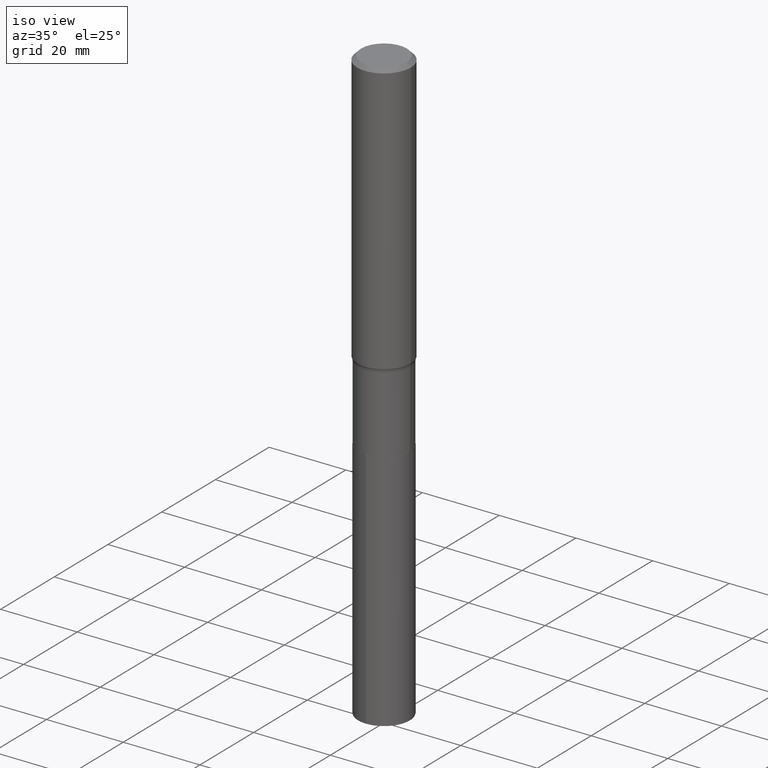
[diagram: clean part render]
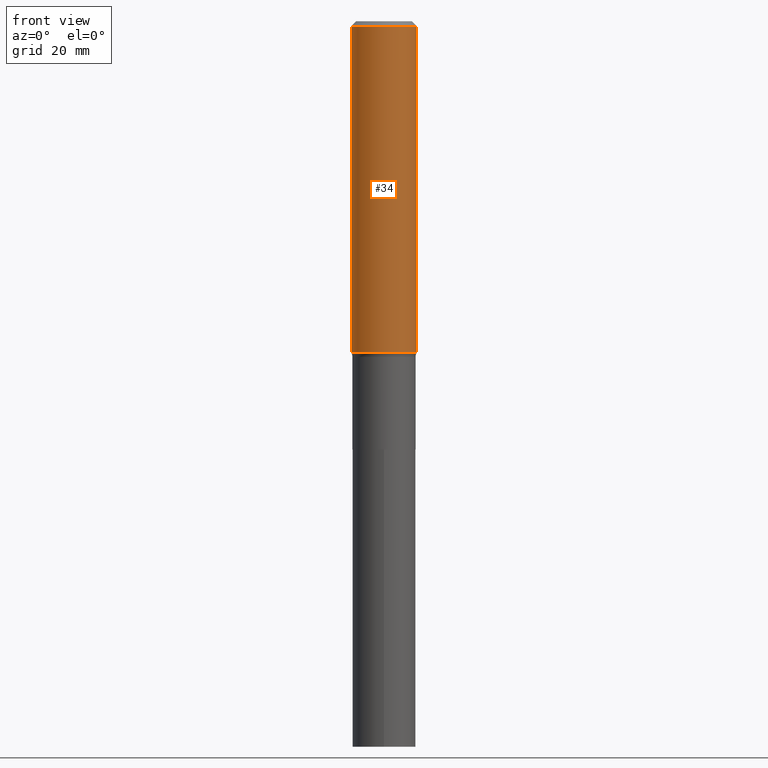
[diagram: tour spotlight — one face highlighted and labeled with its STEP entity id]
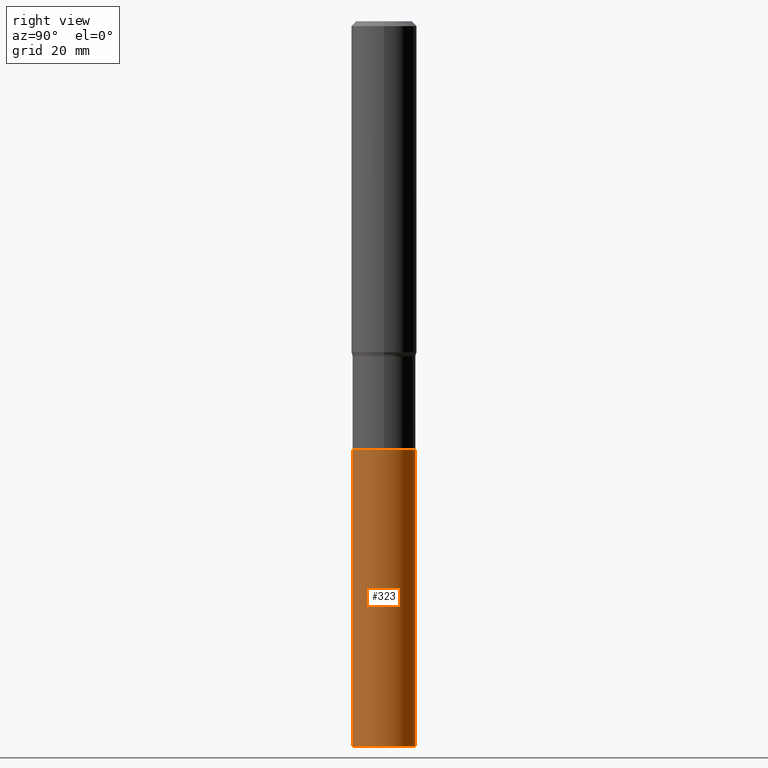
[diagram: tour spotlight — one face highlighted and labeled with its STEP entity id]
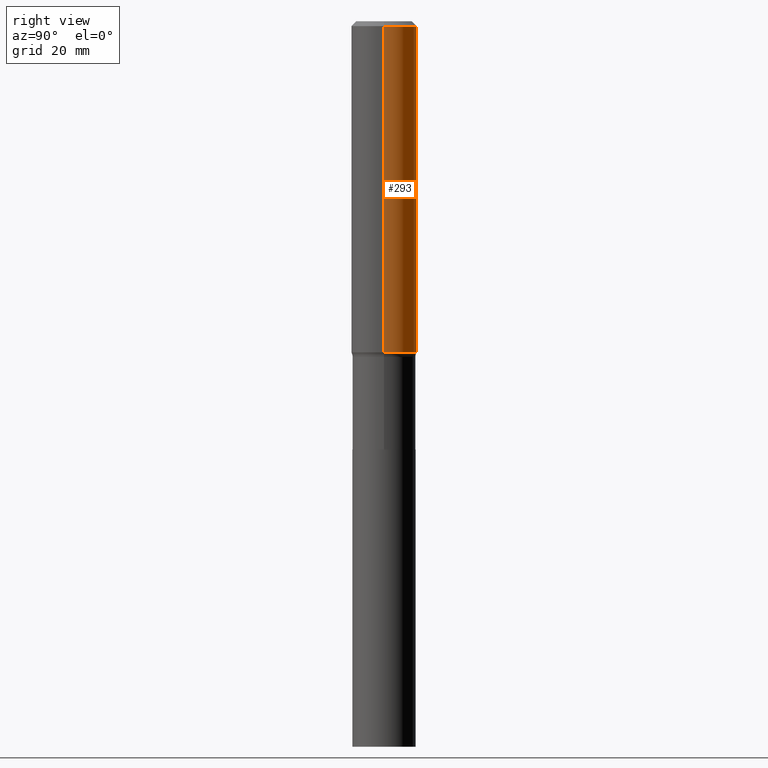
[diagram: tour spotlight — one face highlighted and labeled with its STEP entity id]
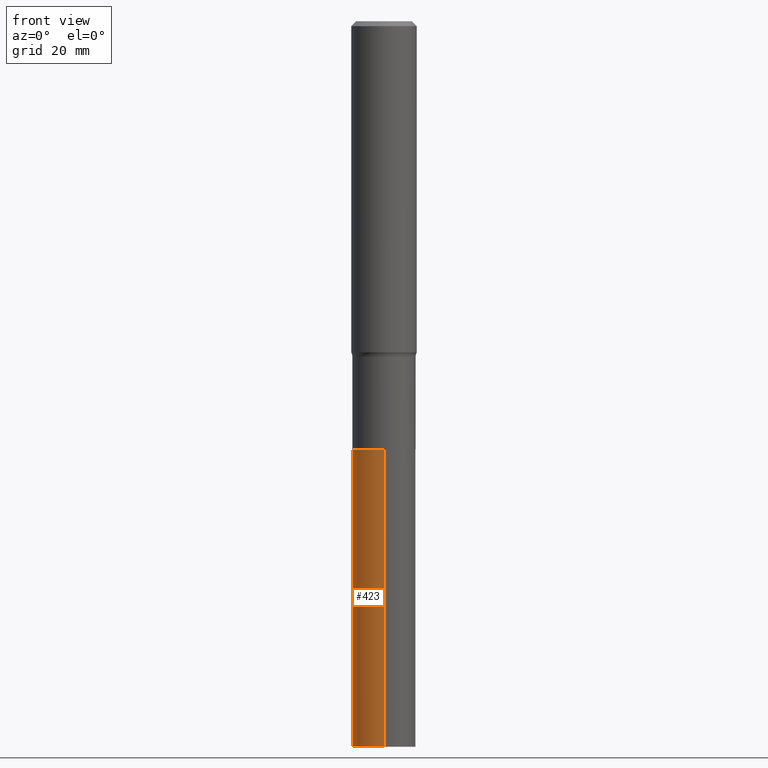
[diagram: tour spotlight — one face highlighted and labeled with its STEP entity id]
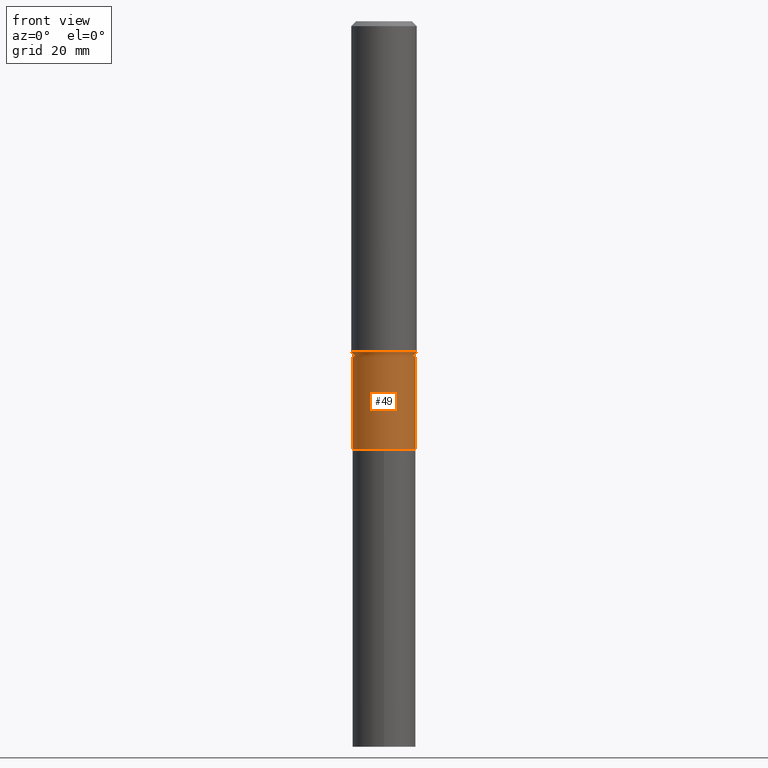
[diagram: tour spotlight — one face highlighted and labeled with its STEP entity id]
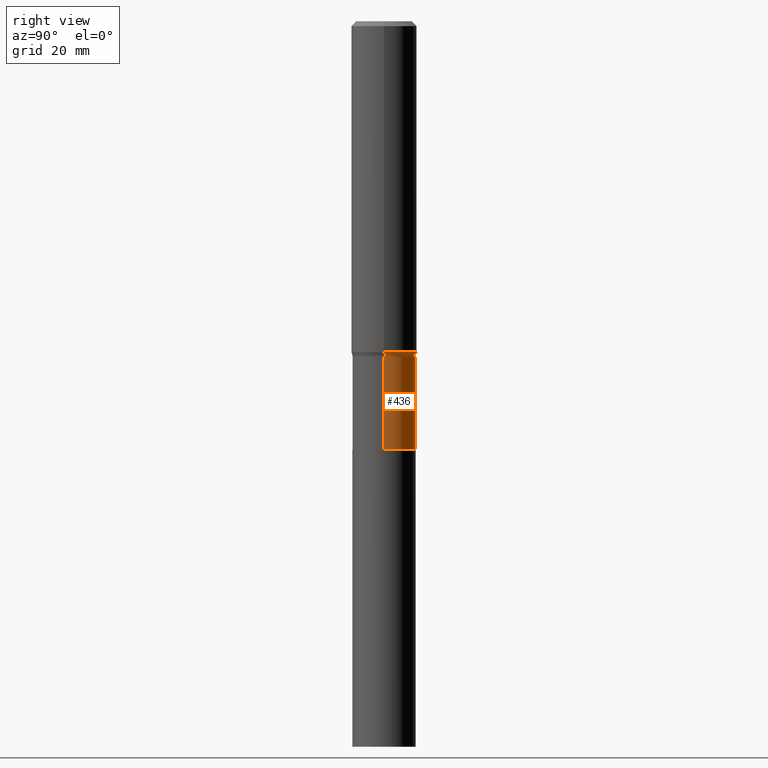
[diagram: tour spotlight — one face highlighted and labeled with its STEP entity id]
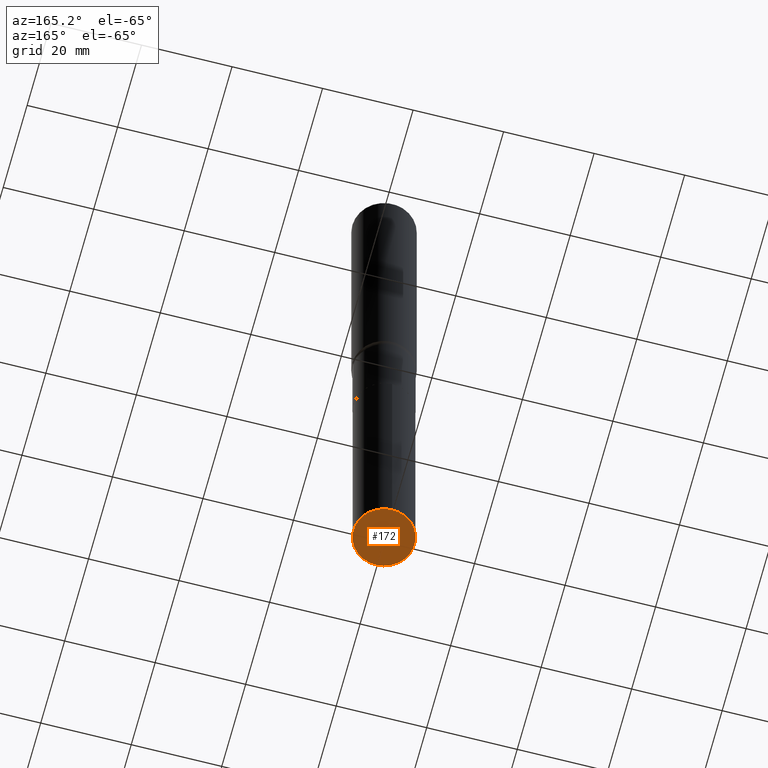
[diagram: tour spotlight — one face highlighted and labeled with its STEP entity id]
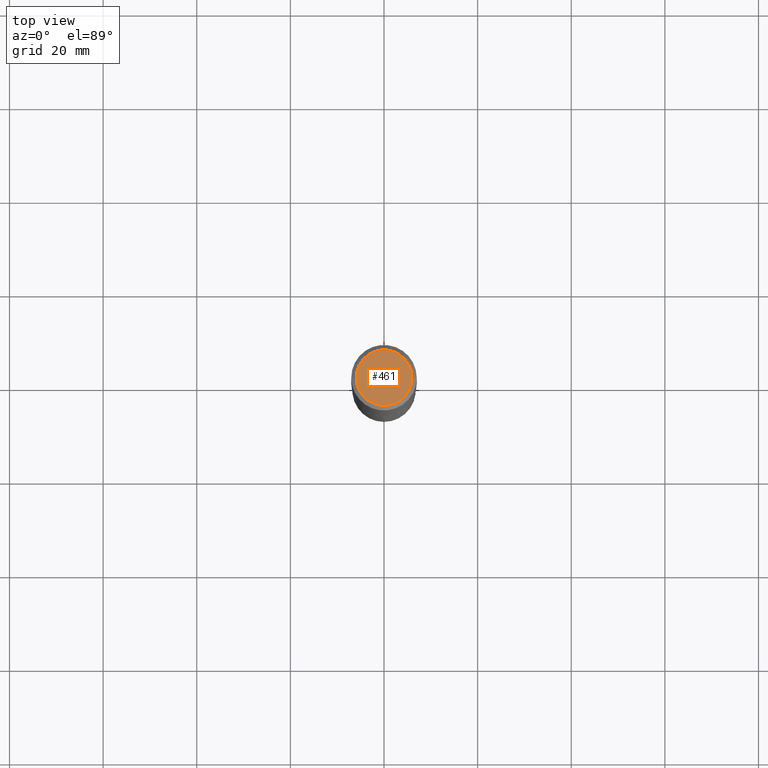
[diagram: tour spotlight — one face highlighted and labeled with its STEP entity id]
A machine part: a face-by-face anatomy tour. The part has 16 B-rep faces; the first image is the clean iso view, then the 8 largest visible faces are spotlighted one at a time (largest first), each with its STEP entity span.

Face 1 — front view, entity #34. In plain terms, the highlighted cylindrical surface (edge-blend (fillet) strip) has radius 7.0002 mm, axis along (-0, 0, 1).
Definition (entity closure, byte-faithful):
#22 = CIRCLE ( 'NONE', #47, 0.2756000000000004002 ) ;
#23 = CARTESIAN_POINT ( 'NONE',  ( -0.2756000000000001782, 1.958255779754837378E-15, -1.355658510874252848E-29 ) ) ;
#32 = CARTESIAN_POINT ( 'NONE',  ( -0.2756000000000000116, -2.976224286966953364E-15, -0.04134000000000025848 ) ) ;
#34 = ADVANCED_FACE ( 'NONE', ( #296 ), #229, .T. ) ;
#47 = AXIS2_PLACEMENT_3D ( 'NONE', #266, #290, #136 ) ;
#84 = ORIENTED_EDGE ( 'NONE', *, *, #152, .T. ) ;
#97 = ORIENTED_EDGE ( 'NONE', *, *, #260, .T. ) ;
#107 = EDGE_LOOP ( 'NONE', ( #267, #97, #84, #406 ) ) ;
#112 = DIRECTION ( 'NONE',  ( 1.000000000000000000, -6.982962677686267499E-15, 0.000000000000000000 ) ) ;
#136 = DIRECTION ( 'NONE',  ( 1.000000000000000000, -6.982962677686270655E-15, 0.000000000000000000 ) ) ;
#152 = EDGE_CURVE ( 'NONE', #451, #355, #450, .T. ) ;
#201 = CIRCLE ( 'NONE', #371, 0.2756000000000000116 ) ;
#229 = CYLINDRICAL_SURFACE ( 'NONE', #330, 0.2756000000000001782 ) ;
#233 = VECTOR ( 'NONE', #244, 39.37007874015748143 ) ;
#244 = DIRECTION ( 'NONE',  ( -2.445468806185136877E-29, 3.491481338843145188E-15, 1.000000000000000000 ) ) ;
#249 = DIRECTION ( 'NONE',  ( -2.445468806185136877E-29, 3.491481338843145188E-15, 1.000000000000000000 ) ) ;
#260 = EDGE_CURVE ( 'NONE', #444, #451, #22, .T. ) ;
#266 = CARTESIAN_POINT ( 'NONE',  ( 6.811223708839815115E-29, -9.724622294895805890E-15, -2.785242523483721477 ) ) ;
#267 = ORIENTED_EDGE ( 'NONE', *, *, #303, .F. ) ;
#290 = DIRECTION ( 'NONE',  ( -2.445468806185136597E-29, 3.491481338843145583E-15, 1.000000000000000000 ) ) ;
#292 = CARTESIAN_POINT ( 'NONE',  ( 0.2756000000000004002, -1.164912680886614558E-14, -2.785242523483721477 ) ) ;
#296 = FACE_OUTER_BOUND ( 'NONE', #107, .T. ) ;
#303 = EDGE_CURVE ( 'NONE', #444, #393, #382, .T. ) ;
#308 = CARTESIAN_POINT ( 'NONE',  ( 0.2756000000000000116, -2.068842352518111732E-15, -0.04134000000000025848 ) ) ;
#330 = AXIS2_PLACEMENT_3D ( 'NONE', #466, #400, #366 ) ;
#350 = CARTESIAN_POINT ( 'NONE',  ( 0.2756000000000001782, -1.924504513970336532E-15, 1.343874319409360828E-29 ) ) ;
#355 = VERTEX_POINT ( 'NONE', #308 ) ;
#356 = VECTOR ( 'NONE', #249, 39.37007874015748143 ) ;
#366 = DIRECTION ( 'NONE',  ( 1.000000000000000000, -6.982962677686267499E-15, 4.876176775795935793E-29 ) ) ;
#371 = AXIS2_PLACEMENT_3D ( 'NONE', #431, #428, #112 ) ;
#382 = LINE ( 'NONE', #23, #356 ) ;
#389 = EDGE_CURVE ( 'NONE', #393, #355, #201, .T. ) ;
#393 = VERTEX_POINT ( 'NONE', #32 ) ;
#400 = DIRECTION ( 'NONE',  ( -2.445468806185136597E-29, 3.491481338843145583E-15, 1.000000000000000000 ) ) ;
#406 = ORIENTED_EDGE ( 'NONE', *, *, #389, .F. ) ;
#428 = DIRECTION ( 'NONE',  ( -2.445468806185136597E-29, 3.491481338843145583E-15, 1.000000000000000000 ) ) ;
#429 = CARTESIAN_POINT ( 'NONE',  ( -0.2756000000000004002, -7.766366515140966145E-15, -2.785242523483721477 ) ) ;
#431 = CARTESIAN_POINT ( 'NONE',  ( 1.010956804476941872E-30, -1.443378385477765316E-16, -0.04134000000000025848 ) ) ;
#444 = VERTEX_POINT ( 'NONE', #429 ) ;
#450 = LINE ( 'NONE', #350, #233 ) ;
#451 = VERTEX_POINT ( 'NONE', #292 ) ;
#466 = CARTESIAN_POINT ( 'NONE',  ( 0.000000000000000000, 0.000000000000000000, 0.000000000000000000 ) ) ;

Face 2 — right view, entity #323. In plain terms, the highlighted cylindrical surface (edge-blend (fillet) strip) has radius 6.75 mm, axis along (-0, 0, 1).
Definition (entity closure, byte-faithful):
#3 = DIRECTION ( 'NONE',  ( -2.445202752082162173E-29, 3.491862343461463945E-15, 1.000000000000000000 ) ) ;
#19 = CARTESIAN_POINT ( 'NONE',  ( 8.809556827401336523E-29, -1.257771237504854747E-14, -3.602399999999999824 ) ) ;
#51 = DIRECTION ( 'NONE',  ( -6.982962677686266711E-15, -1.000000000000000000, 4.111906669673397387E-15 ) ) ;
#55 = CARTESIAN_POINT ( 'NONE',  ( 1.888267320282615635E-15, 0.2657499999999874407, -3.602400000000000713 ) ) ;
#58 = CYLINDRICAL_SURFACE ( 'NONE', #361, 0.2657499999999999862 ) ;
#90 = VERTEX_POINT ( 'NONE', #392 ) ;
#99 = CARTESIAN_POINT ( 'NONE',  ( -1.855722331595036994E-15, -0.2657500000000125318, -3.602399999999998492 ) ) ;
#104 = DIRECTION ( 'NONE',  ( -2.445202752082161893E-29, 3.491862343461464340E-15, 1.000000000000000000 ) ) ;
#120 = EDGE_LOOP ( 'NONE', ( #213, #424, #287, #164 ) ) ;
#123 = VECTOR ( 'NONE', #104, 39.37007874015748143 ) ;
#132 = VERTEX_POINT ( 'NONE', #55 ) ;
#146 = DIRECTION ( 'NONE',  ( -2.445202752082162173E-29, 3.491862343461463945E-15, 1.000000000000000000 ) ) ;
#149 = DIRECTION ( 'NONE',  ( -6.982962677686266711E-15, -1.000000000000000000, 4.111906669673397387E-15 ) ) ;
#162 = CIRCLE ( 'NONE', #219, 0.2657499999999999862 ) ;
#164 = ORIENTED_EDGE ( 'NONE', *, *, #189, .F. ) ;
#189 = EDGE_CURVE ( 'NONE', #283, #263, #246, .T. ) ;
#212 = DIRECTION ( 'NONE',  ( -2.445202752082162173E-29, 3.491862343461463945E-15, 1.000000000000000000 ) ) ;
#213 = ORIENTED_EDGE ( 'NONE', *, *, #449, .T. ) ;
#219 = AXIS2_PLACEMENT_3D ( 'NONE', #291, #146, #149 ) ;
#235 = VECTOR ( 'NONE', #279, 39.37007874015748143 ) ;
#246 = LINE ( 'NONE', #318, #123 ) ;
#262 = CARTESIAN_POINT ( 'NONE',  ( 1.492256370760674490E-28, -2.130736823370221108E-14, -6.102400000000001157 ) ) ;
#263 = VERTEX_POINT ( 'NONE', #99 ) ;
#279 = DIRECTION ( 'NONE',  ( -2.445202752082161893E-29, 3.491862343461464340E-15, 1.000000000000000000 ) ) ;
#283 = VERTEX_POINT ( 'NONE', #407 ) ;
#287 = ORIENTED_EDGE ( 'NONE', *, *, #432, .F. ) ;
#291 = CARTESIAN_POINT ( 'NONE',  ( 8.809556827401336523E-29, -1.257771237504854747E-14, -3.602399999999999824 ) ) ;
#298 = CIRCLE ( 'NONE', #349, 0.2657499999999999862 ) ;
#315 = LINE ( 'NONE', #454, #235 ) ;
#318 = CARTESIAN_POINT ( 'NONE',  ( -1.855722331595036994E-15, -0.2657500000000125318, -3.602399999999998492 ) ) ;
#323 = ADVANCED_FACE ( 'NONE', ( #384 ), #58, .T. ) ;
#341 = EDGE_CURVE ( 'NONE', #90, #132, #315, .T. ) ;
#349 = AXIS2_PLACEMENT_3D ( 'NONE', #262, #3, #367 ) ;
#361 = AXIS2_PLACEMENT_3D ( 'NONE', #19, #212, #51 ) ;
#367 = DIRECTION ( 'NONE',  ( -6.982962677686266711E-15, -1.000000000000000000, 4.111906669673397387E-15 ) ) ;
#384 = FACE_OUTER_BOUND ( 'NONE', #120, .T. ) ;
#392 = CARTESIAN_POINT ( 'NONE',  ( 1.888267320282584475E-15, 0.2657499999999786700, -6.102400000000002045 ) ) ;
#407 = CARTESIAN_POINT ( 'NONE',  ( -1.855722331594975858E-15, -0.2657500000000213025, -6.102400000000000269 ) ) ;
#424 = ORIENTED_EDGE ( 'NONE', *, *, #341, .T. ) ;
#432 = EDGE_CURVE ( 'NONE', #263, #132, #162, .T. ) ;
#449 = EDGE_CURVE ( 'NONE', #283, #90, #298, .T. ) ;
#454 = CARTESIAN_POINT ( 'NONE',  ( 1.888267320282554104E-15, 0.2657499999999874407, -3.602400000000000713 ) ) ;

Face 3 — right view, entity #293. In plain terms, the highlighted cylindrical surface (edge-blend (fillet) strip) has radius 7.0002 mm, axis along (-0, 0, 1).
Definition (entity closure, byte-faithful):
#23 = CARTESIAN_POINT ( 'NONE',  ( -0.2756000000000001782, 1.958255779754837378E-15, -1.355658510874252848E-29 ) ) ;
#32 = CARTESIAN_POINT ( 'NONE',  ( -0.2756000000000000116, -2.976224286966953364E-15, -0.04134000000000025848 ) ) ;
#37 = ORIENTED_EDGE ( 'NONE', *, *, #152, .F. ) ;
#39 = AXIS2_PLACEMENT_3D ( 'NONE', #204, #352, #345 ) ;
#45 = FACE_OUTER_BOUND ( 'NONE', #387, .T. ) ;
#92 = DIRECTION ( 'NONE',  ( -2.445468806185136597E-29, 3.491481338843145583E-15, 1.000000000000000000 ) ) ;
#96 = CIRCLE ( 'NONE', #39, 0.2756000000000000116 ) ;
#152 = EDGE_CURVE ( 'NONE', #451, #355, #450, .T. ) ;
#163 = DIRECTION ( 'NONE',  ( -2.445468806185136597E-29, 3.491481338843145583E-15, 1.000000000000000000 ) ) ;
#174 = DIRECTION ( 'NONE',  ( 1.000000000000000000, -6.982962677686267499E-15, 4.876176775795935793E-29 ) ) ;
#204 = CARTESIAN_POINT ( 'NONE',  ( 1.010956804476941872E-30, -1.443378385477765316E-16, -0.04134000000000025848 ) ) ;
#214 = ORIENTED_EDGE ( 'NONE', *, *, #338, .F. ) ;
#233 = VECTOR ( 'NONE', #244, 39.37007874015748143 ) ;
#241 = DIRECTION ( 'NONE',  ( 1.000000000000000000, -6.982962677686270655E-15, 0.000000000000000000 ) ) ;
#243 = CARTESIAN_POINT ( 'NONE',  ( 0.000000000000000000, 0.000000000000000000, 0.000000000000000000 ) ) ;
#244 = DIRECTION ( 'NONE',  ( -2.445468806185136877E-29, 3.491481338843145188E-15, 1.000000000000000000 ) ) ;
#247 = ORIENTED_EDGE ( 'NONE', *, *, #303, .T. ) ;
#249 = DIRECTION ( 'NONE',  ( -2.445468806185136877E-29, 3.491481338843145188E-15, 1.000000000000000000 ) ) ;
#251 = AXIS2_PLACEMENT_3D ( 'NONE', #243, #92, #174 ) ;
#292 = CARTESIAN_POINT ( 'NONE',  ( 0.2756000000000004002, -1.164912680886614558E-14, -2.785242523483721477 ) ) ;
#293 = ADVANCED_FACE ( 'NONE', ( #45 ), #410, .T. ) ;
#303 = EDGE_CURVE ( 'NONE', #444, #393, #382, .T. ) ;
#308 = CARTESIAN_POINT ( 'NONE',  ( 0.2756000000000000116, -2.068842352518111732E-15, -0.04134000000000025848 ) ) ;
#338 = EDGE_CURVE ( 'NONE', #355, #393, #96, .T. ) ;
#342 = CARTESIAN_POINT ( 'NONE',  ( 6.811223708839815115E-29, -9.724622294895805890E-15, -2.785242523483721477 ) ) ;
#345 = DIRECTION ( 'NONE',  ( 1.000000000000000000, -6.982962677686267499E-15, 0.000000000000000000 ) ) ;
#350 = CARTESIAN_POINT ( 'NONE',  ( 0.2756000000000001782, -1.924504513970336532E-15, 1.343874319409360828E-29 ) ) ;
#352 = DIRECTION ( 'NONE',  ( -2.445468806185136597E-29, 3.491481338843145583E-15, 1.000000000000000000 ) ) ;
#355 = VERTEX_POINT ( 'NONE', #308 ) ;
#356 = VECTOR ( 'NONE', #249, 39.37007874015748143 ) ;
#373 = EDGE_CURVE ( 'NONE', #451, #444, #399, .T. ) ;
#382 = LINE ( 'NONE', #23, #356 ) ;
#387 = EDGE_LOOP ( 'NONE', ( #438, #247, #214, #37 ) ) ;
#393 = VERTEX_POINT ( 'NONE', #32 ) ;
#395 = AXIS2_PLACEMENT_3D ( 'NONE', #342, #163, #241 ) ;
#399 = CIRCLE ( 'NONE', #395, 0.2756000000000004002 ) ;
#410 = CYLINDRICAL_SURFACE ( 'NONE', #251, 0.2756000000000001782 ) ;
#429 = CARTESIAN_POINT ( 'NONE',  ( -0.2756000000000004002, -7.766366515140966145E-15, -2.785242523483721477 ) ) ;
#438 = ORIENTED_EDGE ( 'NONE', *, *, #373, .T. ) ;
#444 = VERTEX_POINT ( 'NONE', #429 ) ;
#450 = LINE ( 'NONE', #350, #233 ) ;
#451 = VERTEX_POINT ( 'NONE', #292 ) ;

Face 4 — front view, entity #423. In plain terms, the highlighted cylindrical surface (edge-blend (fillet) strip) has radius 6.75 mm, axis along (-0, 0, 1).
Definition (entity closure, byte-faithful):
#12 = CARTESIAN_POINT ( 'NONE',  ( 8.809556827401336523E-29, -1.257771237504854747E-14, -3.602399999999999824 ) ) ;
#54 = DIRECTION ( 'NONE',  ( -6.982962677686266711E-15, -1.000000000000000000, 4.111906669673397387E-15 ) ) ;
#55 = CARTESIAN_POINT ( 'NONE',  ( 1.888267320282615635E-15, 0.2657499999999874407, -3.602400000000000713 ) ) ;
#56 = EDGE_LOOP ( 'NONE', ( #313, #192, #456, #126 ) ) ;
#65 = CIRCLE ( 'NONE', #77, 0.2657499999999999862 ) ;
#75 = CIRCLE ( 'NONE', #295, 0.2657499999999999862 ) ;
#77 = AXIS2_PLACEMENT_3D ( 'NONE', #12, #199, #87 ) ;
#87 = DIRECTION ( 'NONE',  ( -6.982962677686266711E-15, -1.000000000000000000, 4.111906669673397387E-15 ) ) ;
#90 = VERTEX_POINT ( 'NONE', #392 ) ;
#99 = CARTESIAN_POINT ( 'NONE',  ( -1.855722331595036994E-15, -0.2657500000000125318, -3.602399999999998492 ) ) ;
#104 = DIRECTION ( 'NONE',  ( -2.445202752082161893E-29, 3.491862343461464340E-15, 1.000000000000000000 ) ) ;
#123 = VECTOR ( 'NONE', #104, 39.37007874015748143 ) ;
#126 = ORIENTED_EDGE ( 'NONE', *, *, #363, .F. ) ;
#128 = DIRECTION ( 'NONE',  ( -2.445202752082162173E-29, 3.491862343461463945E-15, 1.000000000000000000 ) ) ;
#132 = VERTEX_POINT ( 'NONE', #55 ) ;
#189 = EDGE_CURVE ( 'NONE', #283, #263, #246, .T. ) ;
#192 = ORIENTED_EDGE ( 'NONE', *, *, #264, .T. ) ;
#199 = DIRECTION ( 'NONE',  ( -2.445202752082162173E-29, 3.491862343461463945E-15, 1.000000000000000000 ) ) ;
#208 = AXIS2_PLACEMENT_3D ( 'NONE', #254, #391, #327 ) ;
#235 = VECTOR ( 'NONE', #279, 39.37007874015748143 ) ;
#246 = LINE ( 'NONE', #318, #123 ) ;
#254 = CARTESIAN_POINT ( 'NONE',  ( 8.809556827401336523E-29, -1.257771237504854747E-14, -3.602399999999999824 ) ) ;
#263 = VERTEX_POINT ( 'NONE', #99 ) ;
#264 = EDGE_CURVE ( 'NONE', #90, #283, #75, .T. ) ;
#279 = DIRECTION ( 'NONE',  ( -2.445202752082161893E-29, 3.491862343461464340E-15, 1.000000000000000000 ) ) ;
#283 = VERTEX_POINT ( 'NONE', #407 ) ;
#295 = AXIS2_PLACEMENT_3D ( 'NONE', #415, #128, #54 ) ;
#313 = ORIENTED_EDGE ( 'NONE', *, *, #341, .F. ) ;
#315 = LINE ( 'NONE', #454, #235 ) ;
#318 = CARTESIAN_POINT ( 'NONE',  ( -1.855722331595036994E-15, -0.2657500000000125318, -3.602399999999998492 ) ) ;
#327 = DIRECTION ( 'NONE',  ( -6.982962677686266711E-15, -1.000000000000000000, 4.111906669673397387E-15 ) ) ;
#329 = CYLINDRICAL_SURFACE ( 'NONE', #208, 0.2657499999999999862 ) ;
#341 = EDGE_CURVE ( 'NONE', #90, #132, #315, .T. ) ;
#360 = FACE_OUTER_BOUND ( 'NONE', #56, .T. ) ;
#363 = EDGE_CURVE ( 'NONE', #132, #263, #65, .T. ) ;
#391 = DIRECTION ( 'NONE',  ( -2.445202752082162173E-29, 3.491862343461463945E-15, 1.000000000000000000 ) ) ;
#392 = CARTESIAN_POINT ( 'NONE',  ( 1.888267320282584475E-15, 0.2657499999999786700, -6.102400000000002045 ) ) ;
#407 = CARTESIAN_POINT ( 'NONE',  ( -1.855722331594975858E-15, -0.2657500000000213025, -6.102400000000000269 ) ) ;
#415 = CARTESIAN_POINT ( 'NONE',  ( 1.492256370760674490E-28, -2.130736823370221108E-14, -6.102400000000001157 ) ) ;
#423 = ADVANCED_FACE ( 'NONE', ( #360 ), #329, .T. ) ;
#454 = CARTESIAN_POINT ( 'NONE',  ( 1.888267320282554104E-15, 0.2657499999999874407, -3.602400000000000713 ) ) ;
#456 = ORIENTED_EDGE ( 'NONE', *, *, #189, .T. ) ;

Face 5 — front view, entity #49. In plain terms, the highlighted cylindrical surface (edge-blend (fillet) strip) has radius 6.75 mm, axis along (-0, 0, 1).
Definition (entity closure, byte-faithful):
#49 = ADVANCED_FACE ( 'NONE', ( #299 ), #269, .T. ) ;
#72 = DIRECTION ( 'NONE',  ( 1.000000000000000000, -6.982962677686265133E-15, 4.876176775795935232E-29 ) ) ;
#78 = EDGE_CURVE ( 'NONE', #358, #88, #168, .T. ) ;
#79 = CARTESIAN_POINT ( 'NONE',  ( 0.2657499999999999862, -1.855722331595124952E-15, 1.295843978167769732E-29 ) ) ;
#81 = AXIS2_PLACEMENT_3D ( 'NONE', #209, #175, #457 ) ;
#88 = VERTEX_POINT ( 'NONE', #139 ) ;
#94 = ORIENTED_EDGE ( 'NONE', *, *, #105, .T. ) ;
#101 = CARTESIAN_POINT ( 'NONE',  ( 8.808334092998241479E-29, -1.257596663437912518E-14, -3.601899999999999658 ) ) ;
#105 = EDGE_CURVE ( 'NONE', #358, #439, #288, .T. ) ;
#119 = DIRECTION ( 'NONE',  ( -2.445468806185136597E-29, 3.491481338843145583E-15, 1.000000000000000000 ) ) ;
#139 = CARTESIAN_POINT ( 'NONE',  ( -0.2657499999999998752, -9.329163925152790920E-15, -2.823699999999999655 ) ) ;
#145 = DIRECTION ( 'NONE',  ( -2.445468806185136877E-29, 3.491481338843145188E-15, 1.000000000000000000 ) ) ;
#160 = AXIS2_PLACEMENT_3D ( 'NONE', #272, #119, #72 ) ;
#168 = LINE ( 'NONE', #311, #403 ) ;
#175 = DIRECTION ( 'NONE',  ( -2.445468806185136597E-29, 3.491481338843145583E-15, 1.000000000000000000 ) ) ;
#179 = ORIENTED_EDGE ( 'NONE', *, *, #78, .F. ) ;
#185 = CIRCLE ( 'NONE', #81, 0.2657499999999998752 ) ;
#206 = LINE ( 'NONE', #79, #445 ) ;
#209 = CARTESIAN_POINT ( 'NONE',  ( 6.905270268024969154E-29, -9.858895856491388163E-15, -2.823699999999999655 ) ) ;
#222 = EDGE_CURVE ( 'NONE', #88, #319, #185, .T. ) ;
#230 = CARTESIAN_POINT ( 'NONE',  ( 0.2657500000000000417, -1.443168896597424895E-14, -3.601899999999999658 ) ) ;
#253 = DIRECTION ( 'NONE',  ( -2.445468806185136597E-29, 3.491481338843145583E-15, 1.000000000000000000 ) ) ;
#269 = CYLINDRICAL_SURFACE ( 'NONE', #160, 0.2657499999999999862 ) ;
#272 = CARTESIAN_POINT ( 'NONE',  ( 0.000000000000000000, 0.000000000000000000, 0.000000000000000000 ) ) ;
#277 = ORIENTED_EDGE ( 'NONE', *, *, #320, .T. ) ;
#288 = CIRCLE ( 'NONE', #336, 0.2657500000000000417 ) ;
#299 = FACE_OUTER_BOUND ( 'NONE', #386, .T. ) ;
#311 = CARTESIAN_POINT ( 'NONE',  ( -0.2657499999999999862, 1.888267320282466146E-15, -1.307207000235240949E-29 ) ) ;
#319 = VERTEX_POINT ( 'NONE', #455 ) ;
#320 = EDGE_CURVE ( 'NONE', #439, #319, #206, .T. ) ;
#336 = AXIS2_PLACEMENT_3D ( 'NONE', #101, #253, #413 ) ;
#358 = VERTEX_POINT ( 'NONE', #412 ) ;
#378 = DIRECTION ( 'NONE',  ( -2.445468806185136877E-29, 3.491481338843145188E-15, 1.000000000000000000 ) ) ;
#386 = EDGE_LOOP ( 'NONE', ( #179, #94, #277, #427 ) ) ;
#403 = VECTOR ( 'NONE', #145, 39.37007874015748143 ) ;
#412 = CARTESIAN_POINT ( 'NONE',  ( -0.2657500000000000417, -9.329163925152790920E-15, -3.601899999999999658 ) ) ;
#413 = DIRECTION ( 'NONE',  ( 1.000000000000000000, -6.982962677686262766E-15, 0.000000000000000000 ) ) ;
#427 = ORIENTED_EDGE ( 'NONE', *, *, #222, .F. ) ;
#439 = VERTEX_POINT ( 'NONE', #230 ) ;
#445 = VECTOR ( 'NONE', #378, 39.37007874015748143 ) ;
#455 = CARTESIAN_POINT ( 'NONE',  ( 0.2657499999999998752, -1.171461818808651351E-14, -2.823699999999999655 ) ) ;
#457 = DIRECTION ( 'NONE',  ( 1.000000000000000000, -6.982962677686266711E-15, 0.000000000000000000 ) ) ;

Face 6 — right view, entity #436. In plain terms, the highlighted cylindrical surface (edge-blend (fillet) strip) has radius 6.75 mm, axis along (-0, 0, 1).
Definition (entity closure, byte-faithful):
#4 = DIRECTION ( 'NONE',  ( 1.000000000000000000, -6.982962677686266711E-15, 0.000000000000000000 ) ) ;
#35 = DIRECTION ( 'NONE',  ( 1.000000000000000000, -6.982962677686265133E-15, 4.876176775795935232E-29 ) ) ;
#40 = DIRECTION ( 'NONE',  ( -2.445468806185136597E-29, 3.491481338843145583E-15, 1.000000000000000000 ) ) ;
#41 = EDGE_CURVE ( 'NONE', #319, #88, #375, .T. ) ;
#60 = EDGE_CURVE ( 'NONE', #439, #358, #217, .T. ) ;
#67 = ORIENTED_EDGE ( 'NONE', *, *, #41, .F. ) ;
#73 = DIRECTION ( 'NONE',  ( 1.000000000000000000, -6.982962677686262766E-15, 0.000000000000000000 ) ) ;
#78 = EDGE_CURVE ( 'NONE', #358, #88, #168, .T. ) ;
#79 = CARTESIAN_POINT ( 'NONE',  ( 0.2657499999999999862, -1.855722331595124952E-15, 1.295843978167769732E-29 ) ) ;
#88 = VERTEX_POINT ( 'NONE', #139 ) ;
#100 = ORIENTED_EDGE ( 'NONE', *, *, #60, .T. ) ;
#139 = CARTESIAN_POINT ( 'NONE',  ( -0.2657499999999998752, -9.329163925152790920E-15, -2.823699999999999655 ) ) ;
#145 = DIRECTION ( 'NONE',  ( -2.445468806185136877E-29, 3.491481338843145188E-15, 1.000000000000000000 ) ) ;
#168 = LINE ( 'NONE', #311, #403 ) ;
#196 = EDGE_LOOP ( 'NONE', ( #100, #250, #67, #390 ) ) ;
#206 = LINE ( 'NONE', #79, #445 ) ;
#217 = CIRCLE ( 'NONE', #348, 0.2657500000000000417 ) ;
#226 = AXIS2_PLACEMENT_3D ( 'NONE', #227, #294, #35 ) ;
#227 = CARTESIAN_POINT ( 'NONE',  ( 0.000000000000000000, 0.000000000000000000, 0.000000000000000000 ) ) ;
#230 = CARTESIAN_POINT ( 'NONE',  ( 0.2657500000000000417, -1.443168896597424895E-14, -3.601899999999999658 ) ) ;
#231 = CARTESIAN_POINT ( 'NONE',  ( 8.808334092998241479E-29, -1.257596663437912518E-14, -3.601899999999999658 ) ) ;
#250 = ORIENTED_EDGE ( 'NONE', *, *, #78, .T. ) ;
#258 = FACE_OUTER_BOUND ( 'NONE', #196, .T. ) ;
#294 = DIRECTION ( 'NONE',  ( -2.445468806185136597E-29, 3.491481338843145583E-15, 1.000000000000000000 ) ) ;
#311 = CARTESIAN_POINT ( 'NONE',  ( -0.2657499999999999862, 1.888267320282466146E-15, -1.307207000235240949E-29 ) ) ;
#319 = VERTEX_POINT ( 'NONE', #455 ) ;
#320 = EDGE_CURVE ( 'NONE', #439, #319, #206, .T. ) ;
#348 = AXIS2_PLACEMENT_3D ( 'NONE', #231, #402, #73 ) ;
#358 = VERTEX_POINT ( 'NONE', #412 ) ;
#375 = CIRCLE ( 'NONE', #430, 0.2657499999999998752 ) ;
#378 = DIRECTION ( 'NONE',  ( -2.445468806185136877E-29, 3.491481338843145188E-15, 1.000000000000000000 ) ) ;
#390 = ORIENTED_EDGE ( 'NONE', *, *, #320, .F. ) ;
#402 = DIRECTION ( 'NONE',  ( -2.445468806185136597E-29, 3.491481338843145583E-15, 1.000000000000000000 ) ) ;
#403 = VECTOR ( 'NONE', #145, 39.37007874015748143 ) ;
#412 = CARTESIAN_POINT ( 'NONE',  ( -0.2657500000000000417, -9.329163925152790920E-15, -3.601899999999999658 ) ) ;
#430 = AXIS2_PLACEMENT_3D ( 'NONE', #440, #40, #4 ) ;
#433 = CYLINDRICAL_SURFACE ( 'NONE', #226, 0.2657499999999999862 ) ;
#436 = ADVANCED_FACE ( 'NONE', ( #258 ), #433, .T. ) ;
#439 = VERTEX_POINT ( 'NONE', #230 ) ;
#440 = CARTESIAN_POINT ( 'NONE',  ( 6.905270268024969154E-29, -9.858895856491388163E-15, -2.823699999999999655 ) ) ;
#445 = VECTOR ( 'NONE', #378, 39.37007874015748143 ) ;
#455 = CARTESIAN_POINT ( 'NONE',  ( 0.2657499999999998752, -1.171461818808651351E-14, -2.823699999999999655 ) ) ;

Face 7 — auxiliary view, entity #172. In plain terms, the highlighted planar face has unit normal (-0, 0, 1).
Definition (entity closure, byte-faithful):
#3 = DIRECTION ( 'NONE',  ( -2.445202752082162173E-29, 3.491862343461463945E-15, 1.000000000000000000 ) ) ;
#25 = ORIENTED_EDGE ( 'NONE', *, *, #264, .F. ) ;
#52 = FACE_OUTER_BOUND ( 'NONE', #332, .T. ) ;
#54 = DIRECTION ( 'NONE',  ( -6.982962677686266711E-15, -1.000000000000000000, 4.111906669673397387E-15 ) ) ;
#75 = CIRCLE ( 'NONE', #295, 0.2657499999999999862 ) ;
#90 = VERTEX_POINT ( 'NONE', #392 ) ;
#95 = DIRECTION ( 'NONE',  ( -6.982962677686265922E-15, -1.000000000000000000, 3.491862343461464340E-15 ) ) ;
#128 = DIRECTION ( 'NONE',  ( -2.445202752082162173E-29, 3.491862343461463945E-15, 1.000000000000000000 ) ) ;
#129 = AXIS2_PLACEMENT_3D ( 'NONE', #417, #131, #95 ) ;
#131 = DIRECTION ( 'NONE',  ( -2.445202752082161613E-29, 3.491862343461464340E-15, 1.000000000000000000 ) ) ;
#172 = ADVANCED_FACE ( 'NONE', ( #52 ), #354, .F. ) ;
#262 = CARTESIAN_POINT ( 'NONE',  ( 1.492256370760674490E-28, -2.130736823370221108E-14, -6.102400000000001157 ) ) ;
#264 = EDGE_CURVE ( 'NONE', #90, #283, #75, .T. ) ;
#283 = VERTEX_POINT ( 'NONE', #407 ) ;
#295 = AXIS2_PLACEMENT_3D ( 'NONE', #415, #128, #54 ) ;
#298 = CIRCLE ( 'NONE', #349, 0.2657499999999999862 ) ;
#332 = EDGE_LOOP ( 'NONE', ( #353, #25 ) ) ;
#349 = AXIS2_PLACEMENT_3D ( 'NONE', #262, #3, #367 ) ;
#353 = ORIENTED_EDGE ( 'NONE', *, *, #449, .F. ) ;
#354 = PLANE ( 'NONE',  #129 ) ;
#367 = DIRECTION ( 'NONE',  ( -6.982962677686266711E-15, -1.000000000000000000, 4.111906669673397387E-15 ) ) ;
#392 = CARTESIAN_POINT ( 'NONE',  ( 1.888267320282584475E-15, 0.2657499999999786700, -6.102400000000002045 ) ) ;
#407 = CARTESIAN_POINT ( 'NONE',  ( -1.855722331594975858E-15, -0.2657500000000213025, -6.102400000000000269 ) ) ;
#415 = CARTESIAN_POINT ( 'NONE',  ( 1.492256370760674490E-28, -2.130736823370221108E-14, -6.102400000000001157 ) ) ;
#417 = CARTESIAN_POINT ( 'NONE',  ( -2.598769740089572640E-29, -4.639891498317135290E-14, -6.102400000000001157 ) ) ;
#449 = EDGE_CURVE ( 'NONE', #283, #90, #298, .T. ) ;

Face 8 — top view, entity #461. In plain terms, the highlighted planar face has unit normal (0, -0, -1).
Definition (entity closure, byte-faithful):
#14 = DIRECTION ( 'NONE',  ( -1.000000000000000000, 6.982962677686265922E-15, -4.876176775795935793E-29 ) ) ;
#17 = VERTEX_POINT ( 'NONE', #302 ) ;
#36 = DIRECTION ( 'NONE',  ( -2.445468806185136597E-29, 3.491481338843145583E-15, 1.000000000000000000 ) ) ;
#46 = CARTESIAN_POINT ( 'NONE',  ( -5.014852121625167883E-47, 7.159879756154482429E-33, 2.050671065172242981E-18 ) ) ;
#69 = DIRECTION ( 'NONE',  ( 1.000000000000000000, -6.982962677686267499E-15, 4.876157962347795834E-29 ) ) ;
#103 = ORIENTED_EDGE ( 'NONE', *, *, #228, .T. ) ;
#108 = FACE_OUTER_BOUND ( 'NONE', #380, .T. ) ;
#110 = AXIS2_PLACEMENT_3D ( 'NONE', #362, #36, #69 ) ;
#180 = CIRCLE ( 'NONE', #421, 0.2342600000000000238 ) ;
#191 = AXIS2_PLACEMENT_3D ( 'NONE', #46, #401, #14 ) ;
#228 = EDGE_CURVE ( 'NONE', #17, #256, #306, .T. ) ;
#256 = VERTEX_POINT ( 'NONE', #465 ) ;
#261 = CARTESIAN_POINT ( 'NONE',  ( -1.002970424325033577E-46, 1.431975951230896486E-32, 4.101342130344485961E-18 ) ) ;
#302 = CARTESIAN_POINT ( 'NONE',  ( 0.2342600000000000238, -1.821115673845785155E-15, 4.101342130356573868E-18 ) ) ;
#306 = CIRCLE ( 'NONE', #110, 0.2342600000000000238 ) ;
#337 = PLANE ( 'NONE',  #191 ) ;
#359 = DIRECTION ( 'NONE',  ( -2.445468806185136597E-29, 3.491481338843145583E-15, 1.000000000000000000 ) ) ;
#362 = CARTESIAN_POINT ( 'NONE',  ( -1.002970424325033577E-46, 1.431975951230896486E-32, 4.101342130344485961E-18 ) ) ;
#380 = EDGE_LOOP ( 'NONE', ( #459, #103 ) ) ;
#398 = DIRECTION ( 'NONE',  ( 1.000000000000000000, -6.982962677686267499E-15, 4.876157962347795834E-29 ) ) ;
#401 = DIRECTION ( 'NONE',  ( 2.438088387897960049E-29, -3.491481338843145188E-15, -1.000000000000000000 ) ) ;
#405 = EDGE_CURVE ( 'NONE', #256, #17, #180, .T. ) ;
#421 = AXIS2_PLACEMENT_3D ( 'NONE', #261, #359, #398 ) ;
#459 = ORIENTED_EDGE ( 'NONE', *, *, #405, .T. ) ;
#461 = ADVANCED_FACE ( 'NONE', ( #108 ), #337, .F. ) ;
#465 = CARTESIAN_POINT ( 'NONE',  ( -0.2342600000000000238, 1.707997756148671759E-15, 4.101342130332794026E-18 ) ) ;